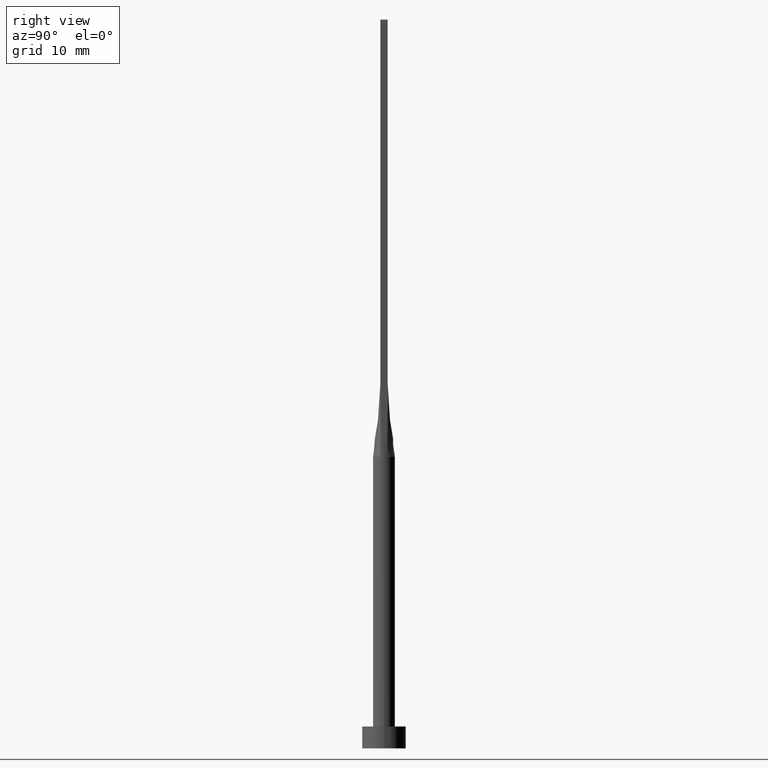
[diagram: clean part render]
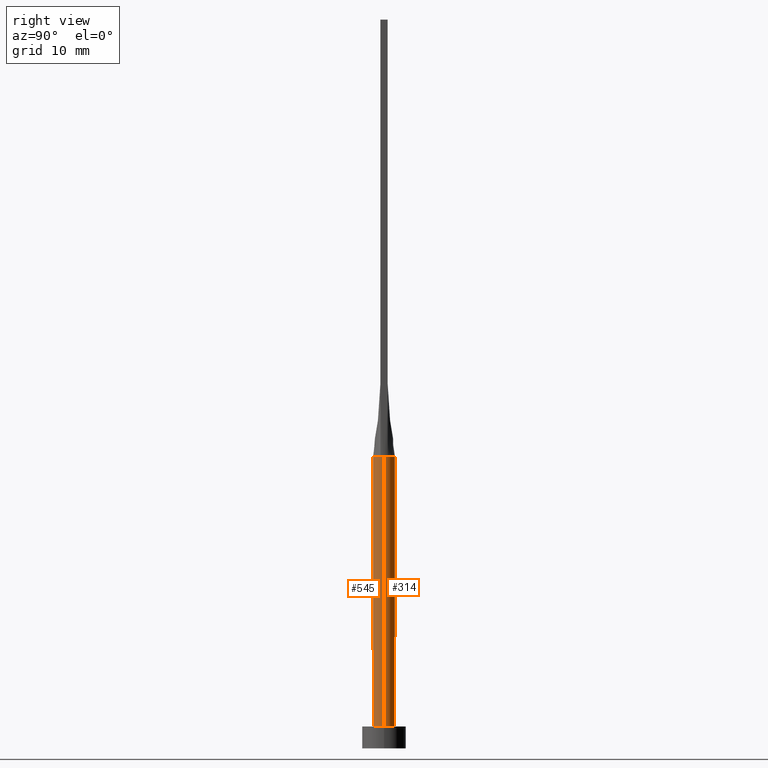
[diagram: same view with one multi-face feature highlighted, each face labeled with its STEP entity id]
A machine part, right view. The highlighted faces form ONE feature: a constant-radius fillet chain: 2 tangent blend faces with common blend radius 1.5 mm. The faces share edges in the B-rep.
Their STEP definitions:
[1] entity #545 (Cylinder):
#16 = VERTEX_POINT ( 'NONE', #315 ) ;
#28 = CARTESIAN_POINT ( 'NONE',  ( 1.500000000000000222, 1.836970198721030181E-16, 3.000000000000000000 ) ) ;
#41 = ORIENTED_EDGE ( 'NONE', *, *, #105, .F. ) ;
#57 = DIRECTION ( 'NONE',  ( 0.000000000000000000, 0.000000000000000000, 1.000000000000000000 ) ) ;
#60 = VERTEX_POINT ( 'NONE', #192 ) ;
#93 = CARTESIAN_POINT ( 'NONE',  ( -1.500000000000000000, -6.850053904551815961E-17, 40.00000000000000711 ) ) ;
#96 = ORIENTED_EDGE ( 'NONE', *, *, #107, .T. ) ;
#105 = EDGE_CURVE ( 'NONE', #160, #60, #541, .T. ) ;
#107 = EDGE_CURVE ( 'NONE', #367, #529, #244, .T. ) ;
#118 = CIRCLE ( 'NONE', #199, 1.500000000000000222 ) ;
#158 = EDGE_CURVE ( 'NONE', #16, #319, #253, .T. ) ;
#160 = VERTEX_POINT ( 'NONE', #547 ) ;
#174 = CARTESIAN_POINT ( 'NONE',  ( 0.000000000000000000, 0.000000000000000000, 40.00000000000000000 ) ) ;
#179 = DIRECTION ( 'NONE',  ( 0.000000000000000000, 0.000000000000000000, 1.000000000000000000 ) ) ;
#192 = CARTESIAN_POINT ( 'NONE',  ( 1.412648369950143756, -0.5045174509283282260, 40.00000000000000000 ) ) ;
#199 = AXIS2_PLACEMENT_3D ( 'NONE', #242, #425, #491 ) ;
#219 = DIRECTION ( 'NONE',  ( -1.000000000000000000, 0.000000000000000000, 0.000000000000000000 ) ) ;
#223 = FACE_OUTER_BOUND ( 'NONE', #382, .T. ) ;
#228 = CARTESIAN_POINT ( 'NONE',  ( 0.000000000000000000, 0.000000000000000000, 40.00000000000000000 ) ) ;
#229 = EDGE_CURVE ( 'NONE', #367, #160, #512, .T. ) ;
#242 = CARTESIAN_POINT ( 'NONE',  ( 0.000000000000000000, 0.000000000000000000, 3.000000000000000000 ) ) ;
#244 = LINE ( 'NONE', #552, #254 ) ;
#253 = LINE ( 'NONE', #460, #558 ) ;
#254 = VECTOR ( 'NONE', #336, 1000.000000000000000 ) ;
#259 = DIRECTION ( 'NONE',  ( 1.000000000000000000, 2.664535259100375697E-15, 0.000000000000000000 ) ) ;
#279 = CIRCLE ( 'NONE', #480, 1.500000000000000222 ) ;
#290 = CARTESIAN_POINT ( 'NONE',  ( 0.000000000000000000, 0.000000000000000000, 40.00000000000000000 ) ) ;
#304 = DIRECTION ( 'NONE',  ( 1.000000000000000000, 0.000000000000000000, 0.000000000000000000 ) ) ;
#306 = DIRECTION ( 'NONE',  ( 0.000000000000000000, 0.000000000000000000, 1.000000000000000000 ) ) ;
#315 = CARTESIAN_POINT ( 'NONE',  ( 1.500000000000000000, 1.053334699963867185E-17, 40.00000000000000711 ) ) ;
#319 = VERTEX_POINT ( 'NONE', #28 ) ;
#336 = DIRECTION ( 'NONE',  ( -0.000000000000000000, -0.000000000000000000, -1.000000000000000000 ) ) ;
#337 = ORIENTED_EDGE ( 'NONE', *, *, #158, .F. ) ;
#338 = ORIENTED_EDGE ( 'NONE', *, *, #389, .T. ) ;
#339 = AXIS2_PLACEMENT_3D ( 'NONE', #228, #442, #219 ) ;
#360 = CARTESIAN_POINT ( 'NONE',  ( -1.500000000000000222, 0.000000000000000000, 3.000000000000000000 ) ) ;
#367 = VERTEX_POINT ( 'NONE', #93 ) ;
#382 = EDGE_LOOP ( 'NONE', ( #337, #537, #41, #501, #96, #338 ) ) ;
#389 = EDGE_CURVE ( 'NONE', #529, #319, #118, .T. ) ;
#395 = AXIS2_PLACEMENT_3D ( 'NONE', #174, #306, #304 ) ;
#418 = DIRECTION ( 'NONE',  ( -0.000000000000000000, -0.000000000000000000, -1.000000000000000000 ) ) ;
#425 = DIRECTION ( 'NONE',  ( 0.000000000000000000, 0.000000000000000000, 1.000000000000000000 ) ) ;
#442 = DIRECTION ( 'NONE',  ( -0.000000000000000000, -0.000000000000000000, -1.000000000000000000 ) ) ;
#460 = CARTESIAN_POINT ( 'NONE',  ( 1.500000000000000222, 1.836970198721030181E-16, 40.00000000000000000 ) ) ;
#466 = DIRECTION ( 'NONE',  ( 1.000000000000000000, 0.000000000000000000, 0.000000000000000000 ) ) ;
#480 = AXIS2_PLACEMENT_3D ( 'NONE', #560, #179, #259 ) ;
#491 = DIRECTION ( 'NONE',  ( 1.000000000000000000, 0.000000000000000000, 0.000000000000000000 ) ) ;
#494 = EDGE_CURVE ( 'NONE', #60, #16, #279, .T. ) ;
#501 = ORIENTED_EDGE ( 'NONE', *, *, #229, .F. ) ;
#512 = CIRCLE ( 'NONE', #395, 1.500000000000000222 ) ;
#517 = AXIS2_PLACEMENT_3D ( 'NONE', #290, #57, #466 ) ;
#528 = CYLINDRICAL_SURFACE ( 'NONE', #339, 1.500000000000000222 ) ;
#529 = VERTEX_POINT ( 'NONE', #360 ) ;
#537 = ORIENTED_EDGE ( 'NONE', *, *, #494, .F. ) ;
#541 = CIRCLE ( 'NONE', #517, 1.500000000000000222 ) ;
#545 = ADVANCED_FACE ( 'NONE', ( #223 ), #528, .T. ) ;
#547 = CARTESIAN_POINT ( 'NONE',  ( -1.412629890847167724, -0.5045107419440655327, 40.00000000000000000 ) ) ;
#552 = CARTESIAN_POINT ( 'NONE',  ( -1.500000000000000222, 0.000000000000000000, 40.00000000000000000 ) ) ;
#558 = VECTOR ( 'NONE', #418, 1000.000000000000000 ) ;
#560 = CARTESIAN_POINT ( 'NONE',  ( 0.000000000000000000, 0.000000000000000000, 40.00000000000000000 ) ) ;
[2] entity #314 (Cylinder):
#10 = ORIENTED_EDGE ( 'NONE', *, *, #158, .T. ) ;
#16 = VERTEX_POINT ( 'NONE', #315 ) ;
#28 = CARTESIAN_POINT ( 'NONE',  ( 1.500000000000000222, 1.836970198721030181E-16, 3.000000000000000000 ) ) ;
#32 = CARTESIAN_POINT ( 'NONE',  ( 1.373020107211261109, 0.6153643240040217455, 39.99999999999999289 ) ) ;
#74 = DIRECTION ( 'NONE',  ( 0.000000000000000000, 0.000000000000000000, 1.000000000000000000 ) ) ;
#78 = ORIENTED_EDGE ( 'NONE', *, *, #294, .F. ) ;
#81 = VERTEX_POINT ( 'NONE', #320 ) ;
#82 = EDGE_CURVE ( 'NONE', #16, #423, #438, .T. ) ;
#87 = ORIENTED_EDGE ( 'NONE', *, *, #396, .T. ) ;
#93 = CARTESIAN_POINT ( 'NONE',  ( -1.500000000000000000, -6.850053904551815961E-17, 40.00000000000000711 ) ) ;
#99 = AXIS2_PLACEMENT_3D ( 'NONE', #184, #74, #449 ) ;
#103 = ORIENTED_EDGE ( 'NONE', *, *, #107, .F. ) ;
#107 = EDGE_CURVE ( 'NONE', #367, #529, #244, .T. ) ;
#108 = CARTESIAN_POINT ( 'NONE',  ( -1.161819288130433891, 0.9587178835757675932, 40.00000000000000711 ) ) ;
#112 = CIRCLE ( 'NONE', #363, 1.500000000000000222 ) ;
#113 = CYLINDRICAL_SURFACE ( 'NONE', #215, 1.500000000000000222 ) ;
#117 = CARTESIAN_POINT ( 'NONE',  ( -1.316960349798174557, 0.7311494208568980468, 40.00000000000001421 ) ) ;
#125 = CARTESIAN_POINT ( 'NONE',  ( 0.8182264876570948253, 1.266912425724810110, 40.00000000000000000 ) ) ;
#134 = EDGE_LOOP ( 'NONE', ( #467, #10, #87, #103, #504, #78 ) ) ;
#151 = AXIS2_PLACEMENT_3D ( 'NONE', #500, #544, #280 ) ;
#158 = EDGE_CURVE ( 'NONE', #16, #319, #253, .T. ) ;
#162 = DIRECTION ( 'NONE',  ( -0.000000000000000000, -0.000000000000000000, -1.000000000000000000 ) ) ;
#184 = CARTESIAN_POINT ( 'NONE',  ( 0.000000000000000000, 0.000000000000000000, 40.00000000000000000 ) ) ;
#211 = CARTESIAN_POINT ( 'NONE',  ( -1.062433464748102407, 1.070418989248103525, 39.99999999999998579 ) ) ;
#215 = AXIS2_PLACEMENT_3D ( 'NONE', #483, #162, #302 ) ;
#217 = CARTESIAN_POINT ( 'NONE',  ( 0.3520402531411749303, 1.468082505288407447, 40.00000000000000000 ) ) ;
#234 = DIRECTION ( 'NONE',  ( 0.000000000000000000, 0.000000000000000000, 1.000000000000000000 ) ) ;
#244 = LINE ( 'NONE', #552, #254 ) ;
#251 = CARTESIAN_POINT ( 'NONE',  ( -0.8182264876570950474, 1.266912425724810554, 40.00000000000000000 ) ) ;
#253 = LINE ( 'NONE', #460, #558 ) ;
#254 = VECTOR ( 'NONE', #336, 1000.000000000000000 ) ;
#280 = DIRECTION ( 'NONE',  ( 1.000000000000000000, 0.000000000000000000, 0.000000000000000000 ) ) ;
#294 = EDGE_CURVE ( 'NONE', #423, #81, #392, .T. ) ;
#300 = CARTESIAN_POINT ( 'NONE',  ( -1.412646936588081381, 0.5045169241220069933, 40.00000000000000000 ) ) ;
#302 = DIRECTION ( 'NONE',  ( -1.000000000000000000, 0.000000000000000000, 0.000000000000000000 ) ) ;
#303 = FACE_OUTER_BOUND ( 'NONE', #134, .T. ) ;
#312 = CARTESIAN_POINT ( 'NONE',  ( 0.6732153042498577600, 1.351288176626052717, 40.00000000000000000 ) ) ;
#314 = ADVANCED_FACE ( 'NONE', ( #303 ), #113, .T. ) ;
#315 = CARTESIAN_POINT ( 'NONE',  ( 1.500000000000000000, 1.053334699963867185E-17, 40.00000000000000711 ) ) ;
#319 = VERTEX_POINT ( 'NONE', #28 ) ;
#320 = CARTESIAN_POINT ( 'NONE',  ( -1.412646936588081381, 0.5045169241220069933, 40.00000000000000000 ) ) ;
#336 = DIRECTION ( 'NONE',  ( -0.000000000000000000, -0.000000000000000000, -1.000000000000000000 ) ) ;
#345 = CARTESIAN_POINT ( 'NONE',  ( -0.3520402531411749858, 1.468082505288407891, 40.00000000000000000 ) ) ;
#351 = CARTESIAN_POINT ( 'NONE',  ( -1.373020107211261331, 0.6153643240040217455, 40.00000000000000000 ) ) ;
#354 = CARTESIAN_POINT ( 'NONE',  ( 0.000000000000000000, 0.000000000000000000, 3.000000000000000000 ) ) ;
#360 = CARTESIAN_POINT ( 'NONE',  ( -1.500000000000000222, 0.000000000000000000, 3.000000000000000000 ) ) ;
#363 = AXIS2_PLACEMENT_3D ( 'NONE', #354, #234, #414 ) ;
#367 = VERTEX_POINT ( 'NONE', #93 ) ;
#391 = CARTESIAN_POINT ( 'NONE',  ( -0.1761797990592590402, 1.499999999999999778, 40.00000000000000000 ) ) ;
#392 = B_SPLINE_CURVE_WITH_KNOTS ( 'NONE', 3,
 ( #574, #32, #405, #439, #527, #125, #312, #217, #399, #391, #345, #572, #251, #211, #108, #117, #351, #300 ),
 .UNSPECIFIED., .F., .F.,
 ( 4, 2, 2, 2, 2, 2, 2, 2, 4 ),
 ( 0.000000000000000000, 0.1250000000000000000, 0.2500000000000000000, 0.3750000000000000000, 0.5000000000000000000, 0.6250000000000000000, 0.7500000000000000000, 0.8750000000000000000, 1.000000000000000000 ),
 .UNSPECIFIED. ) ;
#396 = EDGE_CURVE ( 'NONE', #319, #529, #112, .T. ) ;
#399 = CARTESIAN_POINT ( 'NONE',  ( 0.1761797990592590679, 1.500000000000000222, 40.00000000000000000 ) ) ;
#405 = CARTESIAN_POINT ( 'NONE',  ( 1.316960349798174557, 0.7311494208568982689, 40.00000000000001421 ) ) ;
#410 = CARTESIAN_POINT ( 'NONE',  ( 1.412628473635865189, 0.5045102250504699404, 40.00000000000000000 ) ) ;
#414 = DIRECTION ( 'NONE',  ( 1.000000000000000000, 0.000000000000000000, 0.000000000000000000 ) ) ;
#418 = DIRECTION ( 'NONE',  ( -0.000000000000000000, -0.000000000000000000, -1.000000000000000000 ) ) ;
#420 = CIRCLE ( 'NONE', #99, 1.500000000000000222 ) ;
#423 = VERTEX_POINT ( 'NONE', #410 ) ;
#437 = EDGE_CURVE ( 'NONE', #81, #367, #420, .T. ) ;
#438 = CIRCLE ( 'NONE', #151, 1.500000000000000222 ) ;
#439 = CARTESIAN_POINT ( 'NONE',  ( 1.161819288130433891, 0.9587178835757675932, 40.00000000000000000 ) ) ;
#449 = DIRECTION ( 'NONE',  ( 1.000000000000000000, 0.000000000000000000, 0.000000000000000000 ) ) ;
#460 = CARTESIAN_POINT ( 'NONE',  ( 1.500000000000000222, 1.836970198721030181E-16, 40.00000000000000000 ) ) ;
#467 = ORIENTED_EDGE ( 'NONE', *, *, #82, .F. ) ;
#483 = CARTESIAN_POINT ( 'NONE',  ( 0.000000000000000000, 0.000000000000000000, 40.00000000000000000 ) ) ;
#500 = CARTESIAN_POINT ( 'NONE',  ( 0.000000000000000000, 0.000000000000000000, 40.00000000000000000 ) ) ;
#504 = ORIENTED_EDGE ( 'NONE', *, *, #437, .F. ) ;
#527 = CARTESIAN_POINT ( 'NONE',  ( 1.062433464748102407, 1.070418989248103525, 40.00000000000000000 ) ) ;
#529 = VERTEX_POINT ( 'NONE', #360 ) ;
#544 = DIRECTION ( 'NONE',  ( 0.000000000000000000, 0.000000000000000000, 1.000000000000000000 ) ) ;
#552 = CARTESIAN_POINT ( 'NONE',  ( -1.500000000000000222, 0.000000000000000000, 40.00000000000000000 ) ) ;
#558 = VECTOR ( 'NONE', #418, 1000.000000000000000 ) ;
#572 = CARTESIAN_POINT ( 'NONE',  ( -0.6732153042498576490, 1.351288176626052495, 40.00000000000000000 ) ) ;
#574 = CARTESIAN_POINT ( 'NONE',  ( 1.412628473635865189, 0.5045102250504699404, 40.00000000000000000 ) ) ;